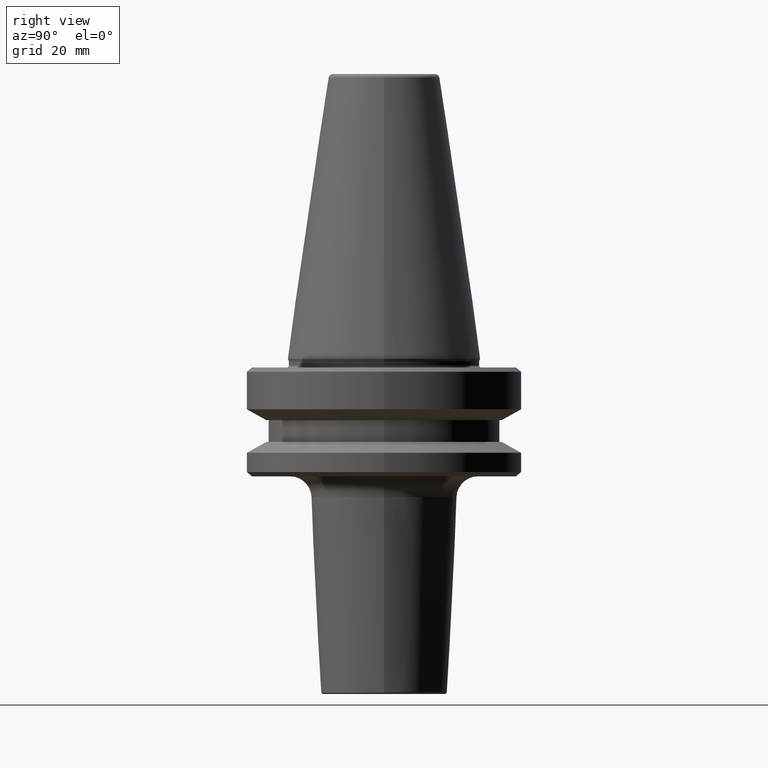
[diagram: clean part render]
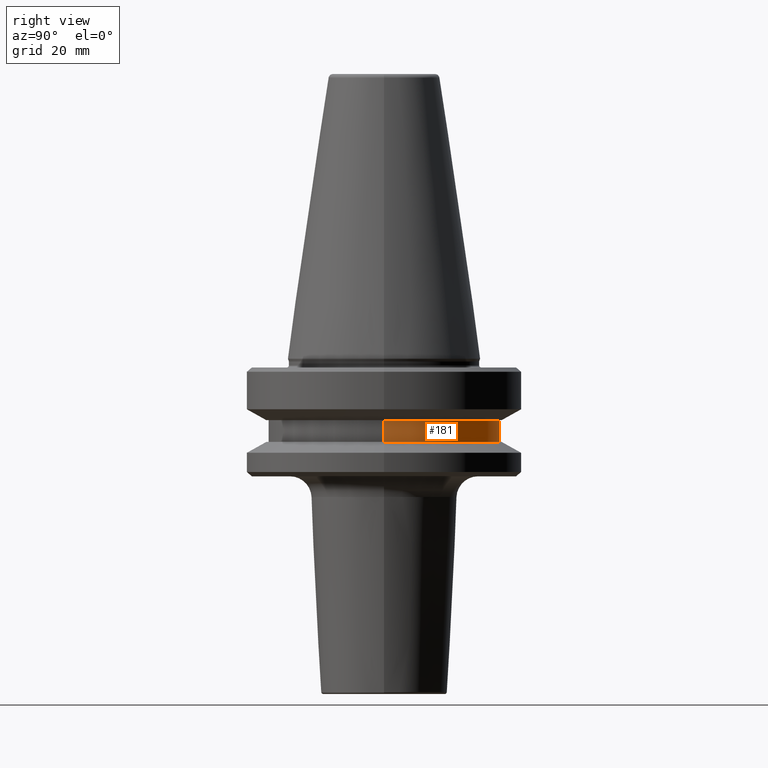
[diagram: same view with one face highlighted and labeled with its STEP entity id]
A machine part, right view. The second image highlights one B-rep face of the part: STEP entity #181.
In plain terms, the highlighted cylindrical surface (partial cylindrical patch) has radius 26.5 mm, axis along (-0, -0, 1).
Its self-contained STEP definition (entity closure, byte-faithful):
#48 = VERTEX_POINT ( 'NONE', #337 ) ;
#80 = FACE_OUTER_BOUND ( 'NONE', #746, .T. ) ;
#84 = CARTESIAN_POINT ( 'NONE',  ( 26.50000000000019200, 0.0000000000000000000, 6.357346922996331500 ) ) ;
#154 = VERTEX_POINT ( 'NONE', #832 ) ;
#155 = AXIS2_PLACEMENT_3D ( 'NONE', #218, #912, #693 ) ;
#162 = EDGE_CURVE ( 'NONE', #200, #154, #535, .T. ) ;
#181 = ADVANCED_FACE ( 'NONE', ( #80 ), #502, .T. ) ;
#200 = VERTEX_POINT ( 'NONE', #315 ) ;
#218 = CARTESIAN_POINT ( 'NONE',  ( 0.0000000000000000000, 0.0000000000000000000, 6.357346922996331500 ) ) ;
#253 = DIRECTION ( 'NONE',  ( -0.0000000000000000000, -0.0000000000000000000, 1.000000000000000000 ) ) ;
#276 = VERTEX_POINT ( 'NONE', #842 ) ;
#284 = DIRECTION ( 'NONE',  ( -0.0000000000000000000, -0.0000000000000000000, 1.000000000000000000 ) ) ;
#292 = ORIENTED_EDGE ( 'NONE', *, *, #1037, .F. ) ;
#315 = CARTESIAN_POINT ( 'NONE',  ( -26.50000000000019200, 3.245314017740509400E-015, -84.50000000000068200 ) ) ;
#331 = CARTESIAN_POINT ( 'NONE',  ( -26.50000000000019200, 3.245314017740509400E-015, 6.357346922996331500 ) ) ;
#336 = VECTOR ( 'NONE', #284, 1000.000000000000000 ) ;
#337 = CARTESIAN_POINT ( 'NONE',  ( 26.50000000000019200, 0.0000000000000000000, -84.50000000000068200 ) ) ;
#367 = LINE ( 'NONE', #84, #758 ) ;
#368 = DIRECTION ( 'NONE',  ( 1.000000000000000000, 0.0000000000000000000, 0.0000000000000000000 ) ) ;
#411 = ORIENTED_EDGE ( 'NONE', *, *, #844, .T. ) ;
#445 = DIRECTION ( 'NONE',  ( -0.0000000000000000000, -0.0000000000000000000, 1.000000000000000000 ) ) ;
#466 = CARTESIAN_POINT ( 'NONE',  ( 0.0000000000000000000, 0.0000000000000000000, -79.50000000000012800 ) ) ;
#502 = CYLINDRICAL_SURFACE ( 'NONE', #155, 26.50000000000019200 ) ;
#535 = LINE ( 'NONE', #331, #336 ) ;
#551 = CIRCLE ( 'NONE', #953, 26.50000000000019200 ) ;
#583 = AXIS2_PLACEMENT_3D ( 'NONE', #466, #253, #368 ) ;
#591 = CIRCLE ( 'NONE', #583, 26.50000000000019200 ) ;
#655 = ORIENTED_EDGE ( 'NONE', *, *, #987, .F. ) ;
#693 = DIRECTION ( 'NONE',  ( 1.000000000000000000, 0.0000000000000000000, 0.0000000000000000000 ) ) ;
#703 = DIRECTION ( 'NONE',  ( -0.0000000000000000000, -0.0000000000000000000, 1.000000000000000000 ) ) ;
#746 = EDGE_LOOP ( 'NONE', ( #411, #830, #655, #292 ) ) ;
#758 = VECTOR ( 'NONE', #703, 1000.000000000000000 ) ;
#830 = ORIENTED_EDGE ( 'NONE', *, *, #162, .T. ) ;
#832 = CARTESIAN_POINT ( 'NONE',  ( -26.50000000000019200, 3.245314017740509400E-015, -79.50000000000012800 ) ) ;
#842 = CARTESIAN_POINT ( 'NONE',  ( 26.50000000000019200, 0.0000000000000000000, -79.50000000000012800 ) ) ;
#844 = EDGE_CURVE ( 'NONE', #48, #200, #551, .T. ) ;
#846 = CARTESIAN_POINT ( 'NONE',  ( 0.0000000000000000000, 0.0000000000000000000, -84.50000000000068200 ) ) ;
#912 = DIRECTION ( 'NONE',  ( -0.0000000000000000000, -0.0000000000000000000, 1.000000000000000000 ) ) ;
#953 = AXIS2_PLACEMENT_3D ( 'NONE', #846, #445, #1002 ) ;
#987 = EDGE_CURVE ( 'NONE', #276, #154, #591, .T. ) ;
#1002 = DIRECTION ( 'NONE',  ( 1.000000000000000000, 0.0000000000000000000, 0.0000000000000000000 ) ) ;
#1037 = EDGE_CURVE ( 'NONE', #48, #276, #367, .T. ) ;